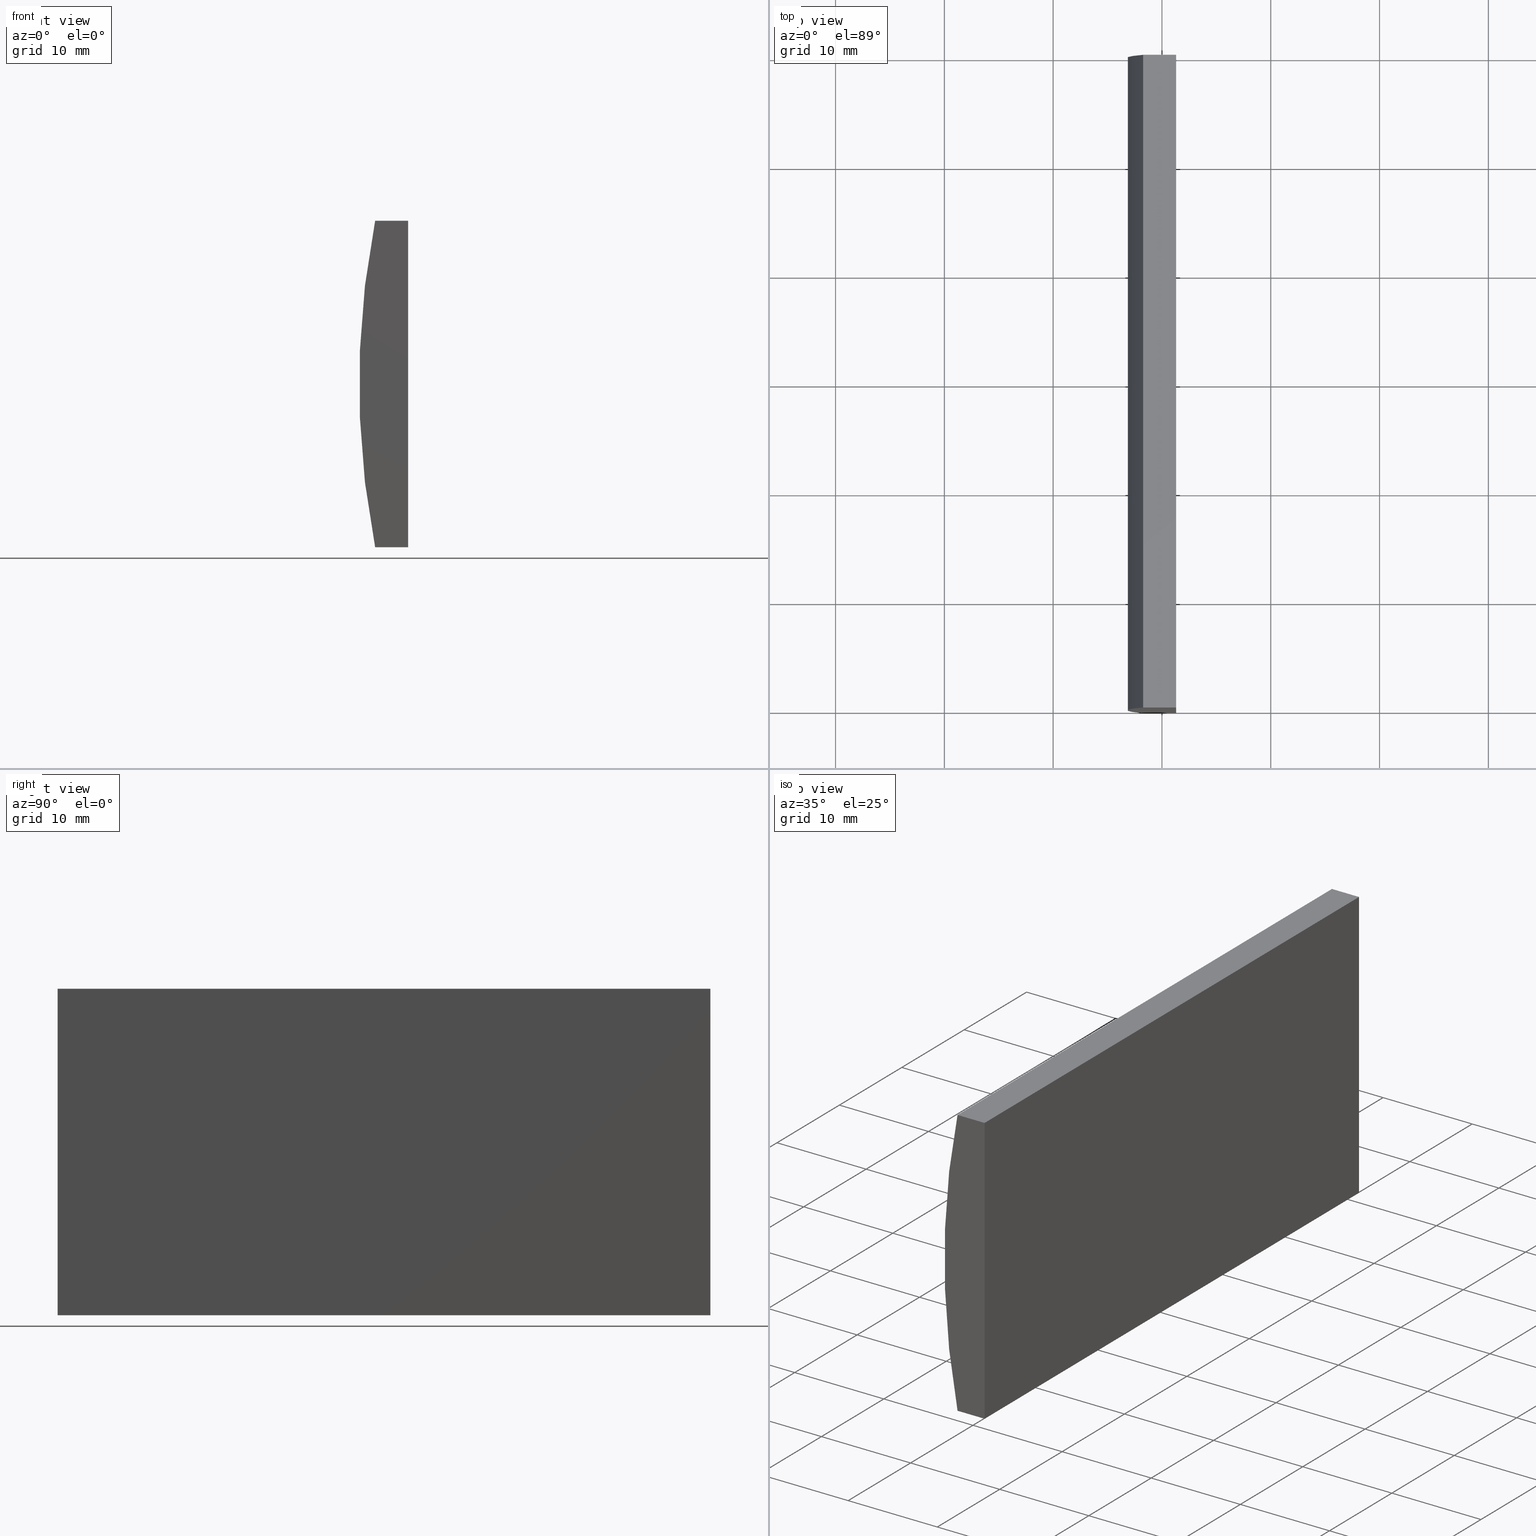
[diagram: canonical four-view strip — front | top / right | iso, engineering-drawing reading convention]
A machine part, canonical four-view strip (front | top / right | iso — engineering-drawing reading convention). The complete STEP part file that produces these views, byte-faithful:
ISO-10303-21;
HEADER;
FILE_DESCRIPTION (( 'STEP AP214' ),
    '1' );
FILE_NAME ('155060.STEP',
    '2019-06-18T07:50:29',
    ( 'user' ),
    ( '΢���й�' ),
    'SwSTEP 2.0',
    'SolidWorks 2016',
    '' );
FILE_SCHEMA (( 'AUTOMOTIVE_DESIGN' ));
ENDSEC;

DATA;
#1 = LINE ( 'NONE', #128, #106 ) ;
#2 = LINE ( 'NONE', #198, #8 ) ;
#3 = VERTEX_POINT ( 'NONE', #197 ) ;
#4 = DIRECTION ( 'NONE',  ( 0.0000000000000000000, 0.0000000000000000000, 1.000000000000000000 ) ) ;
#5 = DIRECTION ( 'NONE',  ( -1.000000000000000000, -0.0000000000000000000, 1.142959327213734500E-015 ) ) ;
#6 = EDGE_LOOP ( 'NONE', ( #24, #32, #166, #169 ) ) ;
#7 = LINE ( 'NONE', #186, #177 ) ;
#8 = VECTOR ( 'NONE', #18, 1000.000000000000000 ) ;
#9 = DIRECTION ( 'NONE',  ( -0.0000000000000000000, -1.000000000000000000, -0.0000000000000000000 ) ) ;
#10 = CARTESIAN_POINT ( 'NONE',  ( 4.355204334851265500, 60.00000000000000000, 4.286263797015675000E-017 ) ) ;
#11 = DIRECTION ( 'NONE',  ( -1.000000000000000000, 0.0000000000000000000, -0.0000000000000000000 ) ) ;
#12 = VERTEX_POINT ( 'NONE', #30 ) ;
#13 = ORIENTED_EDGE ( 'NONE', *, *, #135, .T. ) ;
#14 = STYLED_ITEM ( 'NONE', ( #54 ), #35 ) ;
#15 = ADVANCED_FACE ( 'NONE', ( #62 ), #173, .T. ) ;
#16 = EDGE_LOOP ( 'NONE', ( #193, #182, #161, #195 ) ) ;
#17 = ADVANCED_FACE ( 'NONE', ( #168 ), #97, .F. ) ;
#18 = DIRECTION ( 'NONE',  ( -4.625929269271485900E-016, -0.0000000000000000000, -1.000000000000000000 ) ) ;
#19 = CARTESIAN_POINT ( 'NONE',  ( -71.73029034054660300, 60.00000000000000000, -15.00000000000000000 ) ) ;
#20 = VERTEX_POINT ( 'NONE', #64 ) ;
#21 = APPLICATION_CONTEXT ( 'automotive_design' ) ;
#22 = ORIENTED_EDGE ( 'NONE', *, *, #100, .F. ) ;
#23 = ORIENTED_EDGE ( 'NONE', *, *, #67, .T. ) ;
#24 = ORIENTED_EDGE ( 'NONE', *, *, #107, .T. ) ;
#25 = SURFACE_STYLE_USAGE ( .BOTH. , #75 ) ;
#26 = LINE ( 'NONE', #117, #146 ) ;
#27 = DIRECTION ( 'NONE',  ( 0.0000000000000000000, -0.0000000000000000000, 1.000000000000000000 ) ) ;
#28 = ADVANCED_FACE ( 'NONE', ( #93 ), #87, .F. ) ;
#29 = EDGE_CURVE ( 'NONE', #12, #3, #7, .T. ) ;
#30 = CARTESIAN_POINT ( 'NONE',  ( -68.69479566514873200, 60.00000000000000000, 15.00000000000000000 ) ) ;
#31 = ORIENTED_EDGE ( 'NONE', *, *, #33, .F. ) ;
#32 = ORIENTED_EDGE ( 'NONE', *, *, #135, .F. ) ;
#33 = EDGE_CURVE ( 'NONE', #50, #3, #53, .T. ) ;
#34 = CARTESIAN_POINT ( 'NONE',  ( -68.69479566514874600, 0.0000000000000000000, -15.00000000000000400 ) ) ;
#35 = MANIFOLD_SOLID_BREP ( '͹̨-����1', #88 ) ;
#36 = VECTOR ( 'NONE', #108, 1000.000000000000000 ) ;
#37 = DIRECTION ( 'NONE',  ( 0.0000000000000000000, 1.000000000000000000, 0.0000000000000000000 ) ) ;
#38 = EDGE_CURVE ( 'NONE', #201, #12, #47, .T. ) ;
#39 =( NAMED_UNIT ( * ) PLANE_ANGLE_UNIT ( ) SI_UNIT ( $, .RADIAN. ) );
#40 = CARTESIAN_POINT ( 'NONE',  ( 0.0000000000000000000, 0.0000000000000000000, 0.0000000000000000000 ) ) ;
#41 = CARTESIAN_POINT ( 'NONE',  ( 4.355204334851265500, 60.00000000000000000, 4.286263797015675000E-017 ) ) ;
#42 = EDGE_LOOP ( 'NONE', ( #140, #58, #22, #13 ) ) ;
#43 = FACE_OUTER_BOUND ( 'NONE', #204, .T. ) ;
#44 = CARTESIAN_POINT ( 'NONE',  ( -71.73029034054660300, 60.00000000000000000, 15.00000000000000000 ) ) ;
#45 = EDGE_LOOP ( 'NONE', ( #23, #72, #51, #120 ) ) ;
#46 = PRODUCT_DEFINITION ( 'δ֪', '', #147, #101 ) ;
#47 = LINE ( 'NONE', #187, #150 ) ;
#48 = VERTEX_POINT ( 'NONE', #154 ) ;
#49 =( GEOMETRIC_REPRESENTATION_CONTEXT ( 3 ) GLOBAL_UNCERTAINTY_ASSIGNED_CONTEXT ( ( #63 ) ) GLOBAL_UNIT_ASSIGNED_CONTEXT ( ( #145, #39, #122 ) ) REPRESENTATION_CONTEXT ( 'NONE', 'WORKASPACE' ) );
#50 = VERTEX_POINT ( 'NONE', #90 ) ;
#51 = ORIENTED_EDGE ( 'NONE', *, *, #115, .T. ) ;
#52 = FILL_AREA_STYLE_COLOUR ( '', #68 ) ;
#53 = LINE ( 'NONE', #199, #158 ) ;
#54 = PRESENTATION_STYLE_ASSIGNMENT (( #139 ) ) ;
#55 = DIRECTION ( 'NONE',  ( 1.000000000000000000, 0.0000000000000000000, 0.0000000000000000000 ) ) ;
#56 = APPLICATION_PROTOCOL_DEFINITION ( 'draft international standard', 'automotive_design', 1998, #21 ) ;
#57 = DIRECTION ( 'NONE',  ( 0.0000000000000000000, 1.000000000000000000, 0.0000000000000000000 ) ) ;
#58 = ORIENTED_EDGE ( 'NONE', *, *, #181, .F. ) ;
#59 = FILL_AREA_STYLE ('',( #194 ) ) ;
#60 =( GEOMETRIC_REPRESENTATION_CONTEXT ( 3 ) GLOBAL_UNCERTAINTY_ASSIGNED_CONTEXT ( ( #144 ) ) GLOBAL_UNIT_ASSIGNED_CONTEXT ( ( #189, #153, #162 ) ) REPRESENTATION_CONTEXT ( 'NONE', 'WORKASPACE' ) );
#61 = PLANE ( 'NONE',  #157 ) ;
#62 = FACE_OUTER_BOUND ( 'NONE', #16, .T. ) ;
#63 = UNCERTAINTY_MEASURE_WITH_UNIT (LENGTH_MEASURE( 1.000000000000000100E-005 ), #145, 'distance_accuracy_value', 'NONE');
#64 = CARTESIAN_POINT ( 'NONE',  ( -71.73029034054660300, 60.00000000000000000, -15.00000000000000000 ) ) ;
#65 = VECTOR ( 'NONE', #95, 1000.000000000000000 ) ;
#66 = SURFACE_STYLE_FILL_AREA ( #134 ) ;
#67 = EDGE_CURVE ( 'NONE', #20, #201, #104, .T. ) ;
#68 = COLOUR_RGB ( '',1.000000000000000000, 1.000000000000000000, 1.000000000000000000 ) ;
#69 = PRESENTATION_LAYER_ASSIGNMENT (  '', '', ( #78 ) ) ;
#70 = DIRECTION ( 'NONE',  ( 0.0000000000000000000, 1.000000000000000000, 0.0000000000000000000 ) ) ;
#71 = ADVANCED_BREP_SHAPE_REPRESENTATION ( '155060', ( #35, #109 ), #49 ) ;
#72 = ORIENTED_EDGE ( 'NONE', *, *, #38, .T. ) ;
#73 = EDGE_LOOP ( 'NONE', ( #152, #131, #123, #31 ) ) ;
#74 = PRESENTATION_STYLE_ASSIGNMENT (( #25 ) ) ;
#75 = SURFACE_SIDE_STYLE ('',( #66 ) ) ;
#76 = FACE_OUTER_BOUND ( 'NONE', #45, .T. ) ;
#77 = EDGE_CURVE ( 'NONE', #132, #50, #185, .T. ) ;
#78 = STYLED_ITEM ( 'NONE', ( #74 ), #71 ) ;
#79 = CARTESIAN_POINT ( 'NONE',  ( -71.73029034054660300, 60.00000000000000000, 15.00000000000000000 ) ) ;
#80 =( NAMED_UNIT ( * ) SI_UNIT ( $, .STERADIAN. ) SOLID_ANGLE_UNIT ( ) );
#81 = CARTESIAN_POINT ( 'NONE',  ( -71.73029034054660300, 0.0000000000000000000, -15.00000000000000000 ) ) ;
#82 = CARTESIAN_POINT ( 'NONE',  ( 4.355204334851265500, 0.0000000000000000000, 4.286263797015675000E-017 ) ) ;
#83 = ORIENTED_EDGE ( 'NONE', *, *, #151, .T. ) ;
#84 = SHAPE_DEFINITION_REPRESENTATION ( #170, #71 ) ;
#85 = ORIENTED_EDGE ( 'NONE', *, *, #29, .F. ) ;
#86 = AXIS2_PLACEMENT_3D ( 'NONE', #192, #37, #105 ) ;
#87 = PLANE ( 'NONE',  #137 ) ;
#88 = CLOSED_SHELL ( 'NONE', ( #15, #202, #17, #143, #129, #28 ) ) ;
#89 = PRODUCT ( '155060', '155060', '', ( #98 ) ) ;
#90 = CARTESIAN_POINT ( 'NONE',  ( -71.73029034054660300, 0.0000000000000000000, 15.00000000000000000 ) ) ;
#91 = DIRECTION ( 'NONE',  ( -0.0000000000000000000, -1.000000000000000000, -0.0000000000000000000 ) ) ;
#92 = PRESENTATION_LAYER_ASSIGNMENT (  '', '', ( #14 ) ) ;
#93 = FACE_OUTER_BOUND ( 'NONE', #73, .T. ) ;
#94 =( LENGTH_UNIT ( ) NAMED_UNIT ( * ) SI_UNIT ( .MILLI., .METRE. ) );
#95 = DIRECTION ( 'NONE',  ( -0.0000000000000000000, -1.000000000000000000, -0.0000000000000000000 ) ) ;
#96 = DIRECTION ( 'NONE',  ( 1.000000000000000000, 0.0000000000000000000, 0.0000000000000000000 ) ) ;
#97 = PLANE ( 'NONE',  #167 ) ;
#98 = PRODUCT_CONTEXT ( 'NONE', #21, 'mechanical' ) ;
#99 =( GEOMETRIC_REPRESENTATION_CONTEXT ( 3 ) GLOBAL_UNCERTAINTY_ASSIGNED_CONTEXT ( ( #102 ) ) GLOBAL_UNIT_ASSIGNED_CONTEXT ( ( #94, #116, #80 ) ) REPRESENTATION_CONTEXT ( 'NONE', 'WORKASPACE' ) );
#100 = EDGE_CURVE ( 'NONE', #196, #20, #164, .T. ) ;
#101 = PRODUCT_DEFINITION_CONTEXT ( 'detailed design', #124, 'design' ) ;
#102 = UNCERTAINTY_MEASURE_WITH_UNIT (LENGTH_MEASURE( 1.000000000000000100E-005 ), #94, 'distance_accuracy_value', 'NONE');
#103 = COLOUR_RGB ( '',1.000000000000000000, 1.000000000000000000, 1.000000000000000000 ) ;
#104 = CIRCLE ( 'NONE', #86, 77.54999999999998300 ) ;
#105 = DIRECTION ( 'NONE',  ( 0.0000000000000000000, 0.0000000000000000000, 1.000000000000000000 ) ) ;
#106 = VECTOR ( 'NONE', #149, 1000.000000000000000 ) ;
#107 = EDGE_CURVE ( 'NONE', #3, #48, #191, .T. ) ;
#108 = DIRECTION ( 'NONE',  ( -4.625929269271485900E-016, -0.0000000000000000000, -1.000000000000000000 ) ) ;
#109 = AXIS2_PLACEMENT_3D ( 'NONE', #40, #141, #55 ) ;
#110 = DIRECTION ( 'NONE',  ( 0.0000000000000000000, -0.0000000000000000000, 1.000000000000000000 ) ) ;
#111 = CARTESIAN_POINT ( 'NONE',  ( -68.69479566514874600, 60.00000000000000000, -15.00000000000000400 ) ) ;
#112 = DIRECTION ( 'NONE',  ( -1.000000000000000000, 0.0000000000000000000, 4.625929269271485900E-016 ) ) ;
#113 = DIRECTION ( 'NONE',  ( -0.0000000000000000000, -1.000000000000000000, -0.0000000000000000000 ) ) ;
#114 = MECHANICAL_DESIGN_GEOMETRIC_PRESENTATION_REPRESENTATION (  '', ( #78 ), #99 ) ;
#115 = EDGE_CURVE ( 'NONE', #12, #196, #2, .T. ) ;
#116 =( NAMED_UNIT ( * ) PLANE_ANGLE_UNIT ( ) SI_UNIT ( $, .RADIAN. ) );
#117 = CARTESIAN_POINT ( 'NONE',  ( -71.73029034054660300, 0.0000000000000000000, -15.00000000000000000 ) ) ;
#118 = AXIS2_PLACEMENT_3D ( 'NONE', #82, #176, #4 ) ;
#119 = DIRECTION ( 'NONE',  ( 0.0000000000000000000, 0.0000000000000000000, -1.000000000000000000 ) ) ;
#120 = ORIENTED_EDGE ( 'NONE', *, *, #100, .T. ) ;
#121 = EDGE_CURVE ( 'NONE', #48, #132, #26, .T. ) ;
#122 =( NAMED_UNIT ( * ) SI_UNIT ( $, .STERADIAN. ) SOLID_ANGLE_UNIT ( ) );
#123 = ORIENTED_EDGE ( 'NONE', *, *, #107, .F. ) ;
#124 = APPLICATION_CONTEXT ( 'automotive_design' ) ;
#125 = VECTOR ( 'NONE', #113, 1000.000000000000000 ) ;
#126 = CARTESIAN_POINT ( 'NONE',  ( -68.69479566514874600, 60.00000000000000000, -15.00000000000000400 ) ) ;
#127 = PLANE ( 'NONE',  #138 ) ;
#128 = CARTESIAN_POINT ( 'NONE',  ( -71.73029034054660300, 60.00000000000000000, 15.00000000000000000 ) ) ;
#129 = ADVANCED_FACE ( 'NONE', ( #76 ), #148, .T. ) ;
#130 = LINE ( 'NONE', #160, #65 ) ;
#131 = ORIENTED_EDGE ( 'NONE', *, *, #121, .F. ) ;
#132 = VERTEX_POINT ( 'NONE', #81 ) ;
#133 = DIRECTION ( 'NONE',  ( 1.000000000000000000, 0.0000000000000000000, 0.0000000000000000000 ) ) ;
#134 = FILL_AREA_STYLE ('',( #52 ) ) ;
#135 = EDGE_CURVE ( 'NONE', #196, #48, #203, .T. ) ;
#136 = AXIS2_PLACEMENT_3D ( 'NONE', #10, #57, #27 ) ;
#137 = AXIS2_PLACEMENT_3D ( 'NONE', #179, #70, #110 ) ;
#138 = AXIS2_PLACEMENT_3D ( 'NONE', #79, #142, #11 ) ;
#139 = SURFACE_STYLE_USAGE ( .BOTH. , #171 ) ;
#140 = ORIENTED_EDGE ( 'NONE', *, *, #121, .T. ) ;
#141 = DIRECTION ( 'NONE',  ( 0.0000000000000000000, 0.0000000000000000000, 1.000000000000000000 ) ) ;
#142 = DIRECTION ( 'NONE',  ( 0.0000000000000000000, 0.0000000000000000000, -1.000000000000000000 ) ) ;
#143 = ADVANCED_FACE ( 'NONE', ( #178 ), #61, .F. ) ;
#144 = UNCERTAINTY_MEASURE_WITH_UNIT (LENGTH_MEASURE( 1.000000000000000100E-005 ), #189, 'distance_accuracy_value', 'NONE');
#145 =( LENGTH_UNIT ( ) NAMED_UNIT ( * ) SI_UNIT ( .MILLI., .METRE. ) );
#146 = VECTOR ( 'NONE', #5, 1000.000000000000000 ) ;
#147 = PRODUCT_DEFINITION_FORMATION_WITH_SPECIFIED_SOURCE ( '�κ�', '', #89, .NOT_KNOWN. ) ;
#148 = PLANE ( 'NONE',  #136 ) ;
#149 = DIRECTION ( 'NONE',  ( -0.0000000000000000000, -1.000000000000000000, -0.0000000000000000000 ) ) ;
#150 = VECTOR ( 'NONE', #96, 1000.000000000000000 ) ;
#151 = EDGE_CURVE ( 'NONE', #201, #50, #1, .T. ) ;
#152 = ORIENTED_EDGE ( 'NONE', *, *, #77, .F. ) ;
#153 =( NAMED_UNIT ( * ) PLANE_ANGLE_UNIT ( ) SI_UNIT ( $, .RADIAN. ) );
#154 = CARTESIAN_POINT ( 'NONE',  ( -68.69479566514874600, 0.0000000000000000000, -15.00000000000000400 ) ) ;
#155 = SURFACE_STYLE_FILL_AREA ( #59 ) ;
#156 = DIRECTION ( 'NONE',  ( -1.000000000000000000, -0.0000000000000000000, 1.142959327213734500E-015 ) ) ;
#157 = AXIS2_PLACEMENT_3D ( 'NONE', #19, #175, #183 ) ;
#158 = VECTOR ( 'NONE', #133, 1000.000000000000000 ) ;
#159 = ORIENTED_EDGE ( 'NONE', *, *, #38, .F. ) ;
#160 = CARTESIAN_POINT ( 'NONE',  ( -71.73029034054660300, 60.00000000000000000, -15.00000000000000000 ) ) ;
#161 = ORIENTED_EDGE ( 'NONE', *, *, #67, .F. ) ;
#162 =( NAMED_UNIT ( * ) SI_UNIT ( $, .STERADIAN. ) SOLID_ANGLE_UNIT ( ) );
#163 = AXIS2_PLACEMENT_3D ( 'NONE', #41, #91, #119 ) ;
#164 = LINE ( 'NONE', #172, #200 ) ;
#165 = MECHANICAL_DESIGN_GEOMETRIC_PRESENTATION_REPRESENTATION (  '', ( #14 ), #60 ) ;
#166 = ORIENTED_EDGE ( 'NONE', *, *, #115, .F. ) ;
#167 = AXIS2_PLACEMENT_3D ( 'NONE', #111, #112, #180 ) ;
#168 = FACE_OUTER_BOUND ( 'NONE', #6, .T. ) ;
#169 = ORIENTED_EDGE ( 'NONE', *, *, #29, .T. ) ;
#170 = PRODUCT_DEFINITION_SHAPE ( 'NONE', 'NONE',  #46 ) ;
#171 = SURFACE_SIDE_STYLE ('',( #155 ) ) ;
#172 = CARTESIAN_POINT ( 'NONE',  ( -71.73029034054660300, 60.00000000000000000, -15.00000000000000000 ) ) ;
#173 = CYLINDRICAL_SURFACE ( 'NONE', #163, 77.54999999999998300 ) ;
#174 = PRODUCT_RELATED_PRODUCT_CATEGORY ( 'part', '', ( #89 ) ) ;
#175 = DIRECTION ( 'NONE',  ( 1.142959327213734500E-015, -0.0000000000000000000, 1.000000000000000000 ) ) ;
#176 = DIRECTION ( 'NONE',  ( 0.0000000000000000000, 1.000000000000000000, 0.0000000000000000000 ) ) ;
#177 = VECTOR ( 'NONE', #9, 1000.000000000000000 ) ;
#178 = FACE_OUTER_BOUND ( 'NONE', #42, .T. ) ;
#179 = CARTESIAN_POINT ( 'NONE',  ( 4.355204334851265500, 0.0000000000000000000, 4.286263797015675000E-017 ) ) ;
#180 = DIRECTION ( 'NONE',  ( 4.625929269271485900E-016, 0.0000000000000000000, 1.000000000000000000 ) ) ;
#181 = EDGE_CURVE ( 'NONE', #20, #132, #130, .T. ) ;
#182 = ORIENTED_EDGE ( 'NONE', *, *, #151, .F. ) ;
#183 = DIRECTION ( 'NONE',  ( 1.000000000000000000, 0.0000000000000000000, -1.142959327213734500E-015 ) ) ;
#184 = CARTESIAN_POINT ( 'NONE',  ( -68.69479566514874600, 60.00000000000000000, -15.00000000000000400 ) ) ;
#185 = CIRCLE ( 'NONE', #118, 77.54999999999998300 ) ;
#186 = CARTESIAN_POINT ( 'NONE',  ( -68.69479566514873200, 60.00000000000000000, 15.00000000000000000 ) ) ;
#187 = CARTESIAN_POINT ( 'NONE',  ( -71.73029034054660300, 60.00000000000000000, 15.00000000000000000 ) ) ;
#188 = ORIENTED_EDGE ( 'NONE', *, *, #33, .T. ) ;
#189 =( LENGTH_UNIT ( ) NAMED_UNIT ( * ) SI_UNIT ( .MILLI., .METRE. ) );
#190 = APPLICATION_PROTOCOL_DEFINITION ( 'draft international standard', 'automotive_design', 1998, #124 ) ;
#191 = LINE ( 'NONE', #34, #36 ) ;
#192 = CARTESIAN_POINT ( 'NONE',  ( 4.355204334851265500, 60.00000000000000000, 4.286263797015675000E-017 ) ) ;
#193 = ORIENTED_EDGE ( 'NONE', *, *, #77, .T. ) ;
#194 = FILL_AREA_STYLE_COLOUR ( '', #103 ) ;
#195 = ORIENTED_EDGE ( 'NONE', *, *, #181, .T. ) ;
#196 = VERTEX_POINT ( 'NONE', #184 ) ;
#197 = CARTESIAN_POINT ( 'NONE',  ( -68.69479566514873200, 0.0000000000000000000, 15.00000000000000000 ) ) ;
#198 = CARTESIAN_POINT ( 'NONE',  ( -68.69479566514874600, 60.00000000000000000, -15.00000000000000400 ) ) ;
#199 = CARTESIAN_POINT ( 'NONE',  ( -71.73029034054660300, 0.0000000000000000000, 15.00000000000000000 ) ) ;
#200 = VECTOR ( 'NONE', #156, 1000.000000000000000 ) ;
#201 = VERTEX_POINT ( 'NONE', #44 ) ;
#202 = ADVANCED_FACE ( 'NONE', ( #43 ), #127, .F. ) ;
#203 = LINE ( 'NONE', #126, #125 ) ;
#204 = EDGE_LOOP ( 'NONE', ( #188, #85, #159, #83 ) ) ;
ENDSEC;
END-ISO-10303-21;
